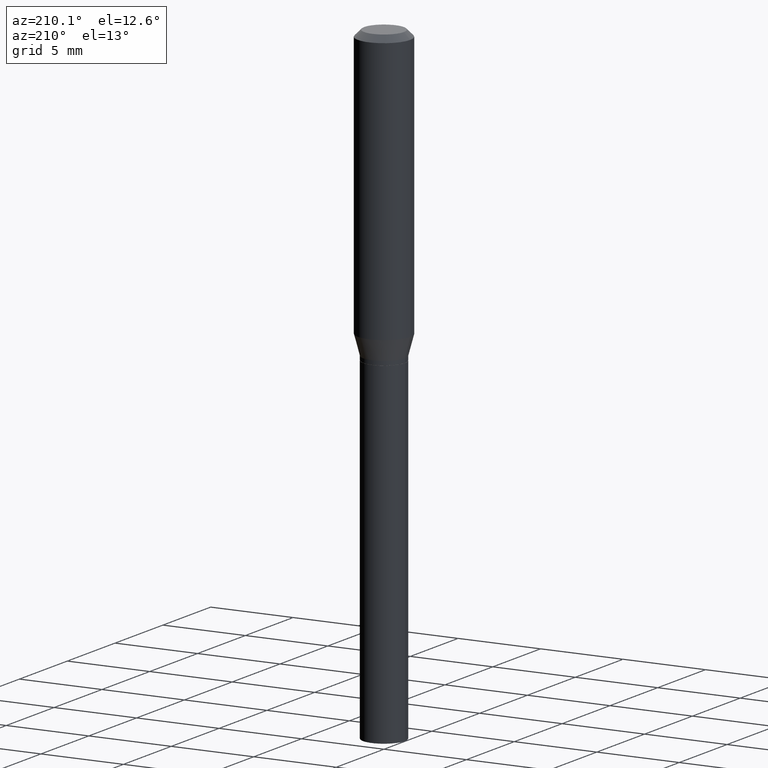
[diagram: clean part render]
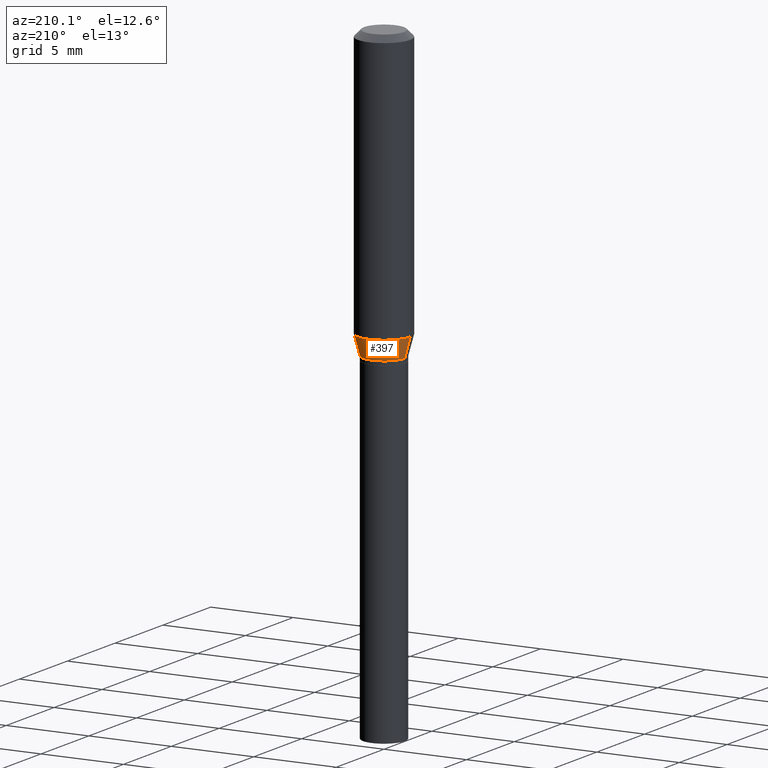
[diagram: same view with one face highlighted and labeled with its STEP entity id]
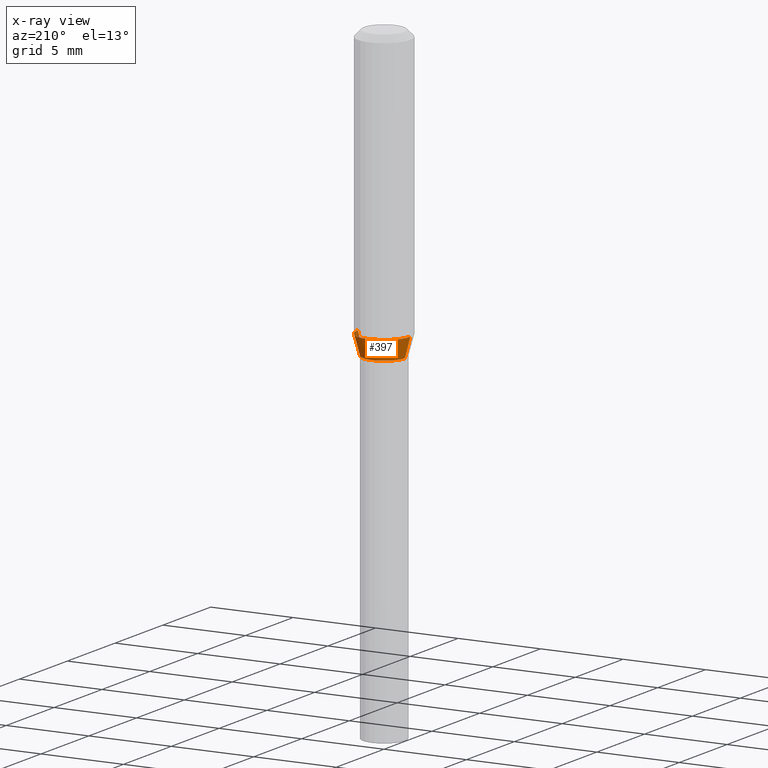
[diagram: x-ray of the same camera — body ghosted, the highlighted face saturated]
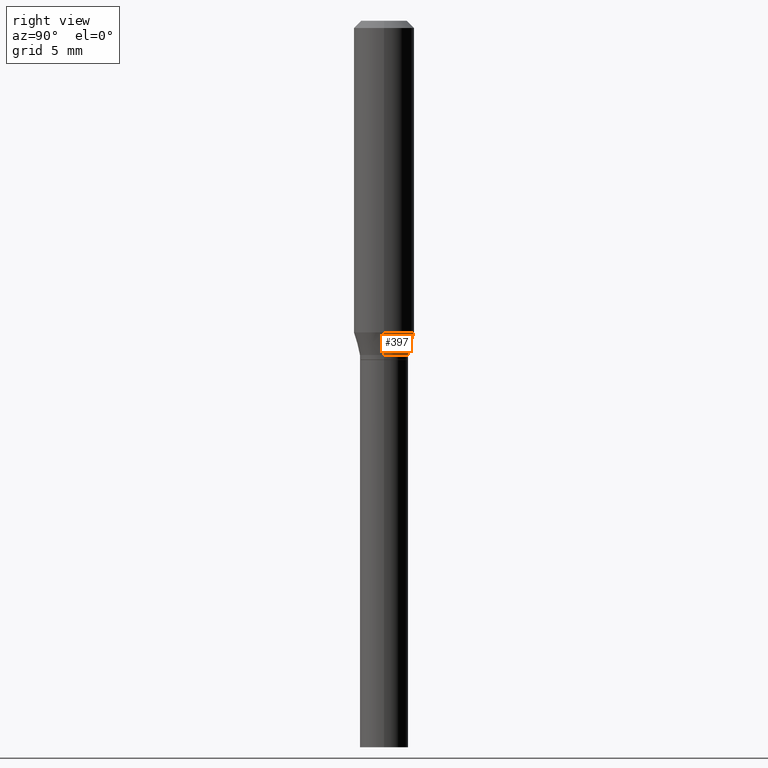
[diagram: same view with one face highlighted and labeled with its STEP entity id]
A machine part, auxiliary view. The second image highlights one B-rep face of the part: STEP entity #397.
The next image is the same camera in x-ray: the body ghosted, the highlighted face saturated — about 0% of this face is hidden behind the body in this view.
A second angle (right view) of the same face is appended — the face is thin or edge-on in the first view.
In plain terms, the highlighted conical surface has half-angle 15 deg.
Its self-contained STEP definition (entity closure, byte-faithful):
#17 = CIRCLE ( 'NONE', #370, 0.05000000000000004441 ) ;
#19 = VERTEX_POINT ( 'NONE', #177 ) ;
#23 = LINE ( 'NONE', #342, #54 ) ;
#24 = VERTEX_POINT ( 'NONE', #315 ) ;
#40 = CONICAL_SURFACE ( 'NONE', #137, 0.05000000000000004441, 0.2617993877991502960 ) ;
#54 = VECTOR ( 'NONE', #381, 39.37007874015748143 ) ;
#113 = DIRECTION ( 'NONE',  ( -2.445468806185136597E-29, 3.491481338843145583E-15, 1.000000000000000000 ) ) ;
#137 = AXIS2_PLACEMENT_3D ( 'NONE', #200, #383, #240 ) ;
#153 = EDGE_LOOP ( 'NONE', ( #403, #227, #273, #298 ) ) ;
#177 = CARTESIAN_POINT ( 'NONE',  ( -0.05000000000000004441, -1.928001923997707077E-15, -0.6900000000000000577 ) ) ;
#186 = DIRECTION ( 'NONE',  ( 0.2588190451025215721, 1.565188264969619995E-15, 0.9659258262890679791 ) ) ;
#193 = VERTEX_POINT ( 'NONE', #374 ) ;
#200 = CARTESIAN_POINT ( 'NONE',  ( 1.687373476267744297E-29, -2.409122123801770771E-15, -0.6900000000000000577 ) ) ;
#225 = CIRCLE ( 'NONE', #261, 0.06250000000000000000 ) ;
#227 = ORIENTED_EDGE ( 'NONE', *, *, #373, .T. ) ;
#234 = DIRECTION ( 'NONE',  ( 1.000000000000000000, -6.982962677686262766E-15, 0.000000000000000000 ) ) ;
#240 = DIRECTION ( 'NONE',  ( 1.000000000000000000, -6.982962677686268288E-15, 0.000000000000000000 ) ) ;
#251 = EDGE_CURVE ( 'NONE', #384, #19, #17, .T. ) ;
#261 = AXIS2_PLACEMENT_3D ( 'NONE', #293, #113, #234 ) ;
#273 = ORIENTED_EDGE ( 'NONE', *, *, #292, .F. ) ;
#292 = EDGE_CURVE ( 'NONE', #24, #193, #225, .T. ) ;
#293 = CARTESIAN_POINT ( 'NONE',  ( 1.573290803355148401E-29, -2.246242301923756407E-15, -0.6433493649053894092 ) ) ;
#298 = ORIENTED_EDGE ( 'NONE', *, *, #316, .F. ) ;
#299 = DIRECTION ( 'NONE',  ( 1.000000000000000000, -6.982962677686268288E-15, 0.000000000000000000 ) ) ;
#305 = FACE_OUTER_BOUND ( 'NONE', #153, .T. ) ;
#312 = CARTESIAN_POINT ( 'NONE',  ( 0.05000000000000004441, -2.758270257686084501E-15, -0.6900000000000000577 ) ) ;
#315 = CARTESIAN_POINT ( 'NONE',  ( 0.06250000000000000000, -2.682677469279148077E-15, -0.6433493649053894092 ) ) ;
#316 = EDGE_CURVE ( 'NONE', #384, #24, #436, .T. ) ;
#333 = CARTESIAN_POINT ( 'NONE',  ( 0.05000000000000004441, -2.758270257686084501E-15, -0.6900000000000000577 ) ) ;
#339 = VECTOR ( 'NONE', #186, 39.37007874015748143 ) ;
#342 = CARTESIAN_POINT ( 'NONE',  ( -0.05000000000000004441, -2.053850755921720363E-15, -0.6900000000000000577 ) ) ;
#370 = AXIS2_PLACEMENT_3D ( 'NONE', #442, #401, #299 ) ;
#373 = EDGE_CURVE ( 'NONE', #19, #193, #23, .T. ) ;
#374 = CARTESIAN_POINT ( 'NONE',  ( -0.06250000000000000000, -1.802153092073694185E-15, -0.6433493649053894092 ) ) ;
#381 = DIRECTION ( 'NONE',  ( -0.2588190451025215721, 5.211531920934551831E-15, 0.9659258262890679791 ) ) ;
#383 = DIRECTION ( 'NONE',  ( -2.445468806185136597E-29, 3.491481338843145583E-15, 1.000000000000000000 ) ) ;
#384 = VERTEX_POINT ( 'NONE', #312 ) ;
#397 = ADVANCED_FACE ( 'NONE', ( #305 ), #40, .T. ) ;
#401 = DIRECTION ( 'NONE',  ( -2.445468806185136597E-29, 3.491481338843145583E-15, 1.000000000000000000 ) ) ;
#403 = ORIENTED_EDGE ( 'NONE', *, *, #251, .T. ) ;
#436 = LINE ( 'NONE', #333, #339 ) ;
#442 = CARTESIAN_POINT ( 'NONE',  ( 1.687373476267744297E-29, -2.409122123801770771E-15, -0.6900000000000000577 ) ) ;